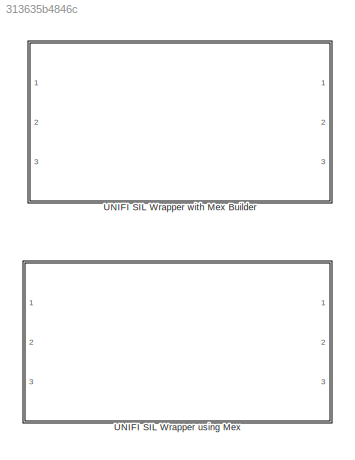
MODEL slx_313635b4846c
KIND library
CONFIG AbsTol = auto
CONFIG EnableMultiTasking = off
CONFIG FixedStep = auto
CONFIG MaxStep = auto
CONFIG MinStep = auto
CONFIG RelTol = 1e-3
CONFIG SampleTimeConstraint = Unconstrained
CONFIG SolverName = VariableStepAuto
CONFIG StartTime = 0.0
CONFIG StopTime = 10.0
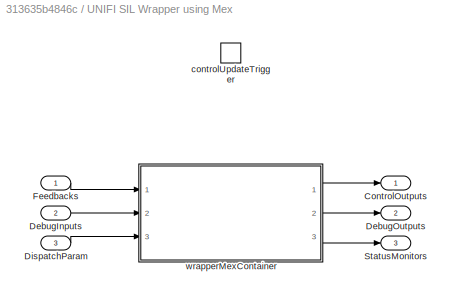
BLOCK [SubSystem] UNIFI SIL Wrapper using Mex
  Ports = [3, 3, 0, 1]
  RequestExecContextInheritance = off
  TreatAsAtomicUnit = on
BLOCK [Outport] UNIFI SIL Wrapper using Mex/ControlOutputs
BLOCK [Inport] UNIFI SIL Wrapper using Mex/DebugInputs
  Port = 2
BLOCK [Outport] UNIFI SIL Wrapper using Mex/DebugOutputs
  Port = 2
BLOCK [Inport] UNIFI SIL Wrapper using Mex/DispatchParam
  Port = 3
BLOCK [Inport] UNIFI SIL Wrapper using Mex/Feedbacks
BLOCK [Outport] UNIFI SIL Wrapper using Mex/StatusMonitors
  Port = 3
BLOCK [TriggerPort] UNIFI SIL Wrapper using Mex/controlUpdateTrigger
  Ports = []
  StatesWhenEnabling = held
  VariantControl = Variant
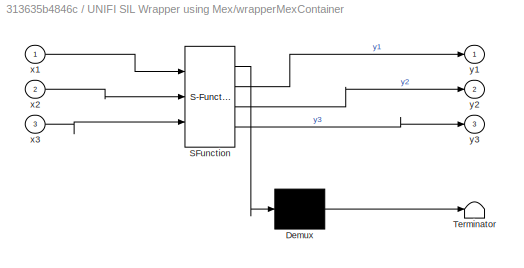
BLOCK [SubSystem] UNIFI SIL Wrapper using Mex/wrapperMexContainer
  ErrorFcn = Stateflow.Translate.translate
  PermitHierarchicalResolution = ExplicitOnly
  Ports = [3, 3]
  RequestExecContextInheritance = off
  SFBlockType = MATLAB Function
  TreatAsAtomicUnit = on
BLOCK [Demux] UNIFI SIL Wrapper using Mex/wrapperMexContainer/ Demux 
  Outputs = 1
  Ports = [1, 1]
BLOCK [S-Function] UNIFI SIL Wrapper using Mex/wrapperMexContainer/ SFunction 
  EnableBusSupport = off
  FunctionName = sf_sfun
  PortCounts = [3 4]
  Ports = [3, 4]
  SFcnIsStateOwnerBlock = off
  SFunctionDeploymentMode = off
  Tag = Stateflow S-Function 1
BLOCK [Terminator] UNIFI SIL Wrapper using Mex/wrapperMexContainer/ Terminator 
BLOCK [Inport] UNIFI SIL Wrapper using Mex/wrapperMexContainer/x1
BLOCK [Inport] UNIFI SIL Wrapper using Mex/wrapperMexContainer/x2
  Port = 2
BLOCK [Inport] UNIFI SIL Wrapper using Mex/wrapperMexContainer/x3
  Port = 3
BLOCK [Outport] UNIFI SIL Wrapper using Mex/wrapperMexContainer/y1
BLOCK [Outport] UNIFI SIL Wrapper using Mex/wrapperMexContainer/y2
  Port = 2
BLOCK [Outport] UNIFI SIL Wrapper using Mex/wrapperMexContainer/y3
  Port = 3
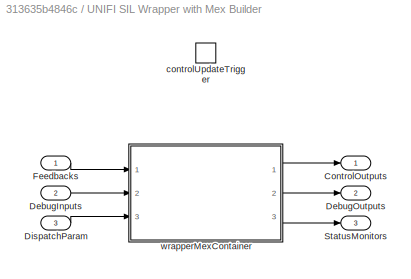
BLOCK [SubSystem] UNIFI SIL Wrapper with Mex Builder
  Ports = [3, 3, 0, 1]
  RequestExecContextInheritance = off
  TreatAsAtomicUnit = on
BLOCK [Outport] UNIFI SIL Wrapper with Mex Builder/ControlOutputs
BLOCK [Inport] UNIFI SIL Wrapper with Mex Builder/DebugInputs
  Port = 2
BLOCK [Outport] UNIFI SIL Wrapper with Mex Builder/DebugOutputs
  Port = 2
BLOCK [Inport] UNIFI SIL Wrapper with Mex Builder/DispatchParam
  Port = 3
BLOCK [Inport] UNIFI SIL Wrapper with Mex Builder/Feedbacks
BLOCK [Outport] UNIFI SIL Wrapper with Mex Builder/StatusMonitors
  Port = 3
BLOCK [TriggerPort] UNIFI SIL Wrapper with Mex Builder/controlUpdateTrigger
  Ports = []
  StatesWhenEnabling = held
  VariantControl = Variant
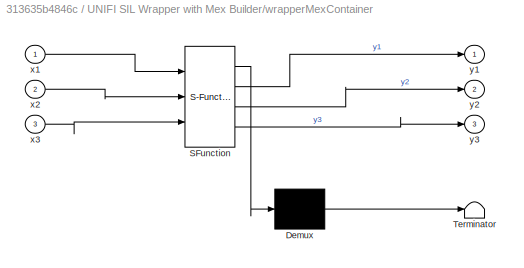
BLOCK [SubSystem] UNIFI SIL Wrapper with Mex Builder/wrapperMexContainer
  ErrorFcn = Stateflow.Translate.translate
  PermitHierarchicalResolution = ExplicitOnly
  Ports = [3, 3]
  RequestExecContextInheritance = off
  SFBlockType = MATLAB Function
  TreatAsAtomicUnit = on
BLOCK [Demux] UNIFI SIL Wrapper with Mex Builder/wrapperMexContainer/ Demux 
  Outputs = 1
  Ports = [1, 1]
BLOCK [S-Function] UNIFI SIL Wrapper with Mex Builder/wrapperMexContainer/ SFunction 
  EnableBusSupport = off
  FunctionName = sf_sfun
  PortCounts = [3 4]
  Ports = [3, 4]
  SFcnIsStateOwnerBlock = off
  SFunctionDeploymentMode = off
  Tag = Stateflow S-Function 2
BLOCK [Terminator] UNIFI SIL Wrapper with Mex Builder/wrapperMexContainer/ Terminator 
BLOCK [Inport] UNIFI SIL Wrapper with Mex Builder/wrapperMexContainer/x1
BLOCK [Inport] UNIFI SIL Wrapper with Mex Builder/wrapperMexContainer/x2
  Port = 2
BLOCK [Inport] UNIFI SIL Wrapper with Mex Builder/wrapperMexContainer/x3
  Port = 3
BLOCK [Outport] UNIFI SIL Wrapper with Mex Builder/wrapperMexContainer/y1
BLOCK [Outport] UNIFI SIL Wrapper with Mex Builder/wrapperMexContainer/y2
  Port = 2
BLOCK [Outport] UNIFI SIL Wrapper with Mex Builder/wrapperMexContainer/y3
  Port = 3
LINE UNIFI SIL Wrapper using Mex/DebugInputs:1 -> UNIFI SIL Wrapper using Mex/wrapperMexContainer:2
LINE UNIFI SIL Wrapper using Mex/DispatchParam:1 -> UNIFI SIL Wrapper using Mex/wrapperMexContainer:3
LINE UNIFI SIL Wrapper using Mex/Feedbacks:1 -> UNIFI SIL Wrapper using Mex/wrapperMexContainer:1
LINE UNIFI SIL Wrapper using Mex/wrapperMexContainer:1 -> UNIFI SIL Wrapper using Mex/ControlOutputs:1
LINE UNIFI SIL Wrapper using Mex/wrapperMexContainer:2 -> UNIFI SIL Wrapper using Mex/DebugOutputs:1
LINE UNIFI SIL Wrapper using Mex/wrapperMexContainer:3 -> UNIFI SIL Wrapper using Mex/StatusMonitors:1
LINE UNIFI SIL Wrapper with Mex Builder/DebugInputs:1 -> UNIFI SIL Wrapper with Mex Builder/wrapperMexContainer:2
LINE UNIFI SIL Wrapper with Mex Builder/DispatchParam:1 -> UNIFI SIL Wrapper with Mex Builder/wrapperMexContainer:3
LINE UNIFI SIL Wrapper with Mex Builder/Feedbacks:1 -> UNIFI SIL Wrapper with Mex Builder/wrapperMexContainer:1
LINE UNIFI SIL Wrapper with Mex Builder/wrapperMexContainer:1 -> UNIFI SIL Wrapper with Mex Builder/ControlOutputs:1
LINE UNIFI SIL Wrapper with Mex Builder/wrapperMexContainer:2 -> UNIFI SIL Wrapper with Mex Builder/DebugOutputs:1
LINE UNIFI SIL Wrapper with Mex Builder/wrapperMexContainer:3 -> UNIFI SIL Wrapper with Mex Builder/StatusMonitors:1
CHART UNIFI SIL Wrapper using Mex/wrapperMexContainer states=1 transitions=1
  STATE_LABEL 'eML_blk_kernel()'
  STATE_LABEL 'SCRIPT:\nfunction [y1, y2, y3] = runWrapperMex(x1, x2, x3)\n\ny1 = x1;\ny2 = x2;\ny3 = x3;\n\nend\n'
CHART UNIFI SIL Wrapper with Mex Builder/wrapperMexContainer states=1 transitions=1
  STATE_LABEL 'eML_blk_kernel()'
  STATE_LABEL 'SCRIPT:\nfunction [y1, y2, y3] = runWrapperMex(x1, x2, x3)\n\ny1 = x1;\ny2 = x2;\ny3 = x3;\n\nend\n'
CHART  states=0 transitions=0
CHART  states=0 transitions=0
